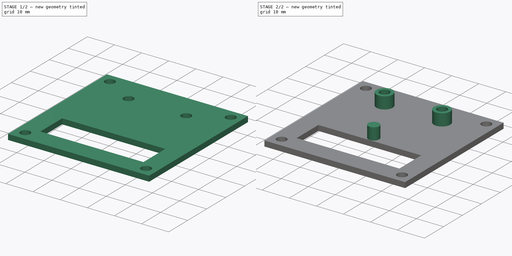
[diagram: build sequence overview — one tinted view per stage of 2, left to right]
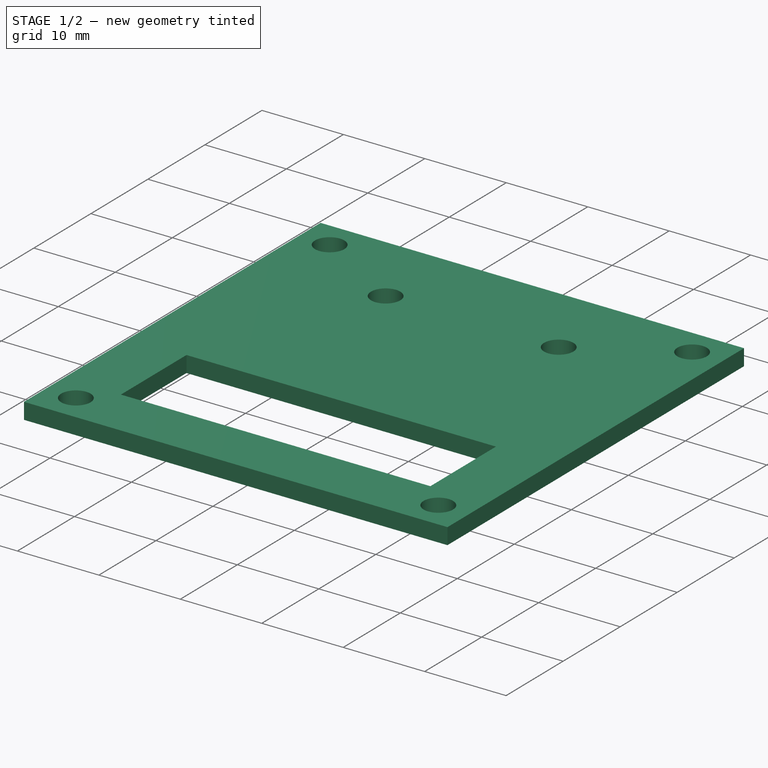
[diagram: stage 1 of 2 — iso view after this stage's code; geometry added in this stage tinted green]
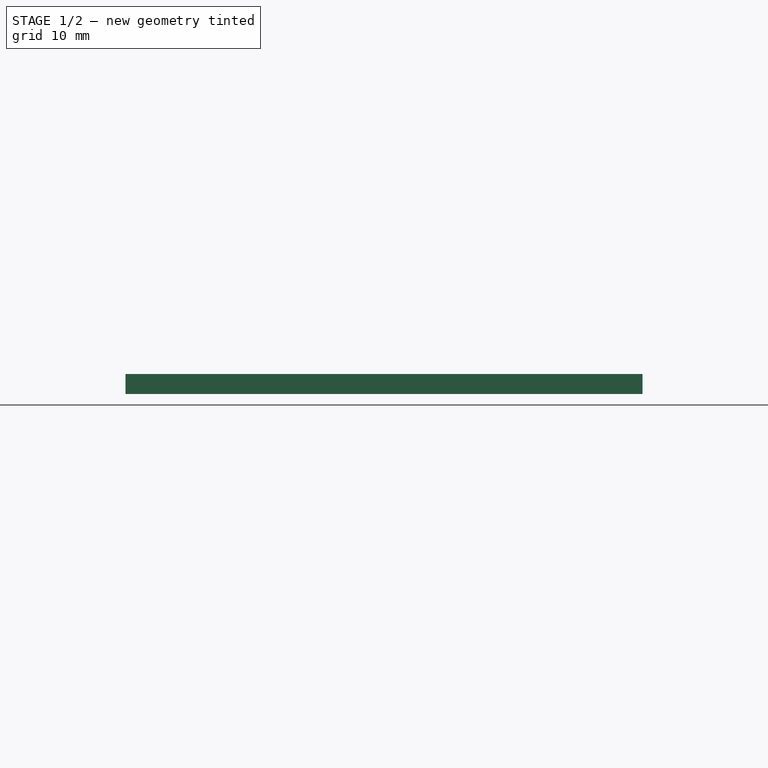
[diagram: stage 1 of 2 — front view after this stage's code; geometry added in this stage tinted green]
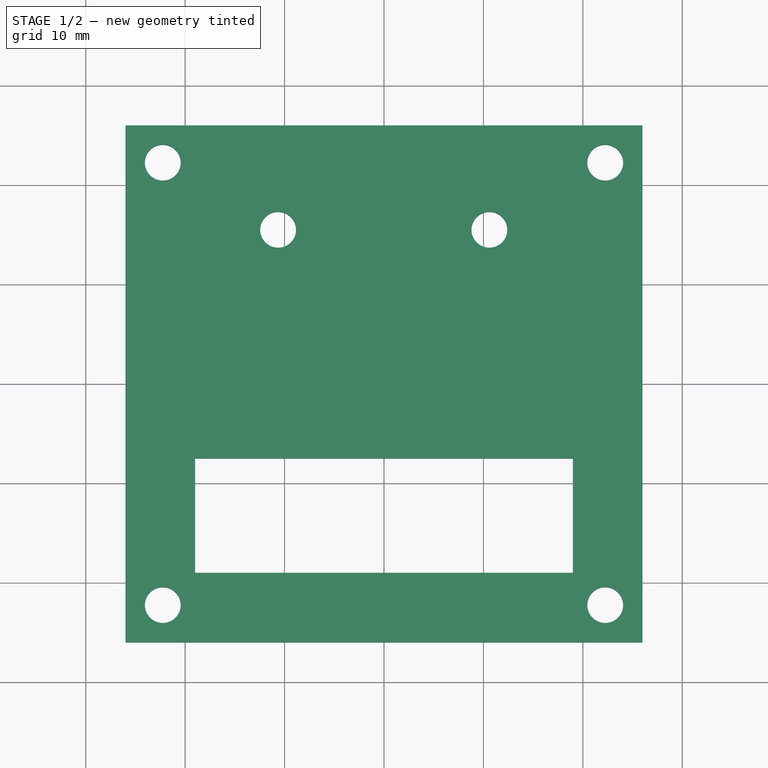
[diagram: stage 1 of 2 — top view after this stage's code; geometry added in this stage tinted green]
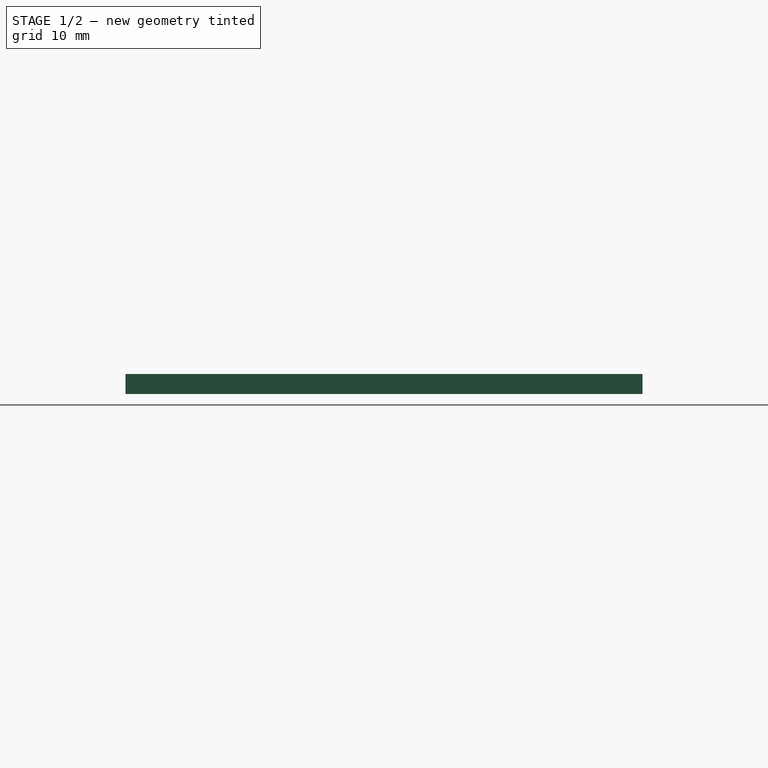
[diagram: stage 1 of 2 — right view after this stage's code; geometry added in this stage tinted green]
FCSTD DOCUMENT  (FreeCAD 0.14R3700 (Git))
Label: gps_mount
License: CC-BY 3.0
LicenseURL: http://creativecommons.org/licenses/by/3.0/
objects: Sketcher::SketchObject×2, PartDesign::Pad×2
note: 6 computed .brp shape members not serialized (recipe doc carries the construction recipe); baked Part::Feature solids carry a one-line shape summary decoded from their .brp

FEATURE [Sketcher::SketchObject] Sketch
  sketch-geometry (18):
    g0: LineSegment StartX=-26 StartY=26 StartZ=0 EndX=26 EndY=26 EndZ=0
    g1: LineSegment StartX=26 StartY=26 StartZ=0 EndX=26 EndY=-26 EndZ=0
    g2: LineSegment StartX=26 StartY=-26 StartZ=0 EndX=-26 EndY=-26 EndZ=0
    g3: LineSegment StartX=-26 StartY=-26 StartZ=0 EndX=-26 EndY=26 EndZ=0
    g4: LineSegment StartX=19 StartY=-19 StartZ=0 EndX=-19 EndY=-19 EndZ=0
    g5: LineSegment StartX=-19 StartY=-19 StartZ=0 EndX=-19 EndY=-7.5 EndZ=0
    g6: Circle CenterX=22.25 CenterY=22.25 CenterZ=0 NormalX=0 NormalY=0 NormalZ=1 Radius=1.8
    g7: Circle CenterX=22.25 CenterY=-22.25 CenterZ=0 NormalX=0 NormalY=0 NormalZ=1 Radius=1.8
    g8: Circle CenterX=-22.25 CenterY=22.25 CenterZ=0 NormalX=0 NormalY=0 NormalZ=1 Radius=1.8
    g9: Circle CenterX=-22.25 CenterY=-22.25 CenterZ=0 NormalX=0 NormalY=0 NormalZ=1 Radius=1.8
    g10: LineSegment StartX=19 StartY=-7.5 StartZ=0 EndX=-19 EndY=-7.5 EndZ=0
    g11: LineSegment StartX=19 StartY=-7.5 StartZ=0 EndX=19 EndY=-19 EndZ=0
    g12: LineSegment [constr] StartX=-7.5 StartY=7.5 StartZ=0 EndX=7.5 EndY=7.5 EndZ=0
    g13: LineSegment [constr] StartX=7.5 StartY=7.5 StartZ=0 EndX=7.5 EndY=-7.5 EndZ=0
    g14: LineSegment [constr] StartX=7.5 StartY=-7.5 StartZ=0 EndX=-7.5 EndY=-7.5 EndZ=0
    g15: LineSegment [constr] StartX=-7.5 StartY=-7.5 StartZ=0 EndX=-7.5 EndY=7.5 EndZ=0
    g16: Circle CenterX=-10.65 CenterY=15.5 CenterZ=0 NormalX=0 NormalY=0 NormalZ=1 Radius=1.8
    g17: Circle CenterX=10.6 CenterY=15.5 CenterZ=0 NormalX=0 NormalY=0 NormalZ=1 Radius=1.8
  constraints (59):
    c: Coincident(g0,g1)
    c: Coincident(g1,g2)
    c: Coincident(g2,g3)
    c: Coincident(g3,g0)
    c: Horizontal(g0)
    c: Horizontal(g2)
    c: Vertical(g1)
    c: Vertical(g3)
    c: Equal(g3,g0)
    c: Equal(g0,g1)
    c: Equal(g2,g1)
    c: DistanceX(g0,g0) = 52
    c: DistanceY(g-1,g0) = 26
    c: DistanceX(g-1,g0) = -26
    c: Coincident(g11,g4)
    c: Coincident(g4,g5)
    c: Horizontal(g4)
    c: Vertical(g5)
    c: DistanceX(g11,g1) = 7
    c: DistanceY(g11,g1) = -7
    c: DistanceX(g2,g4) = 7
    c: Radius(g9) = 1.8
    c: Radius(g8) = 1.8
    c: Radius(g6) = 1.8
    c: Radius(g7) = 1.8
    c: DistanceX(g9,g2) = -3.75
    c: DistanceY(g2,g9) = 3.75
    c: DistanceX(g0,g8) = 3.75
    c: DistanceY(g0,g8) = -3.75
    c: DistanceX(g6,g0) = 3.75
    c: DistanceY(g6,g0) = 3.75
    c: DistanceX(g1,g7) = -3.75
    c: DistanceY(g1,g7) = 3.75
    c: Horizontal(g10)
    c: PointOnObject(g5,g10)
    c: PointOnObject(g11,g10)
    c: Coincident(g5,g10)
    c: Coincident(g10,g11)
    c: Coincident(g12,g13)
    c: Coincident(g13,g14)
    c: Coincident(g14,g15)
    c: Coincident(g15,g12)
    c: Horizontal(g12)
    c: Horizontal(g14)
    c: Vertical(g13)
    c: Vertical(g15)
    c: Equal(g15,g13)
    c: Equal(g15,g12)
    c: Equal(g15,g14)
    c: DistanceX(g12,g12) = 15
    c: DistanceX(g-1,g12) = -7.5
    c: DistanceY(g-1,g12) = 7.5
    c: Radius(g16) = 1.8
    c: DistanceY(g14,g16) = 23
    c: DistanceY(g13,g10) = 0
    c: Radius(g17) = 1.8
    c: DistanceX(g17,g16) = -21.25
    c: DistanceX(g-1,g16) = -10.65
    c: DistanceY(g16,g17) = 0
FEATURE [PartDesign::Pad] Pad
  Length = 2
  Length2 = 20
  Sketch = -> Sketch
  Type = 0
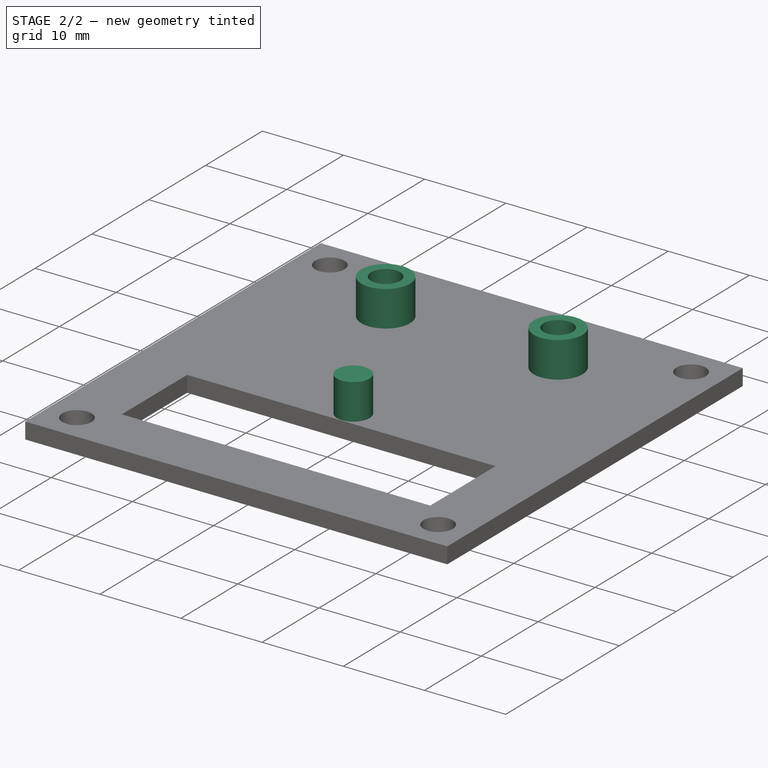
[diagram: stage 2 of 2 — iso view after this stage's code; geometry added in this stage tinted green]
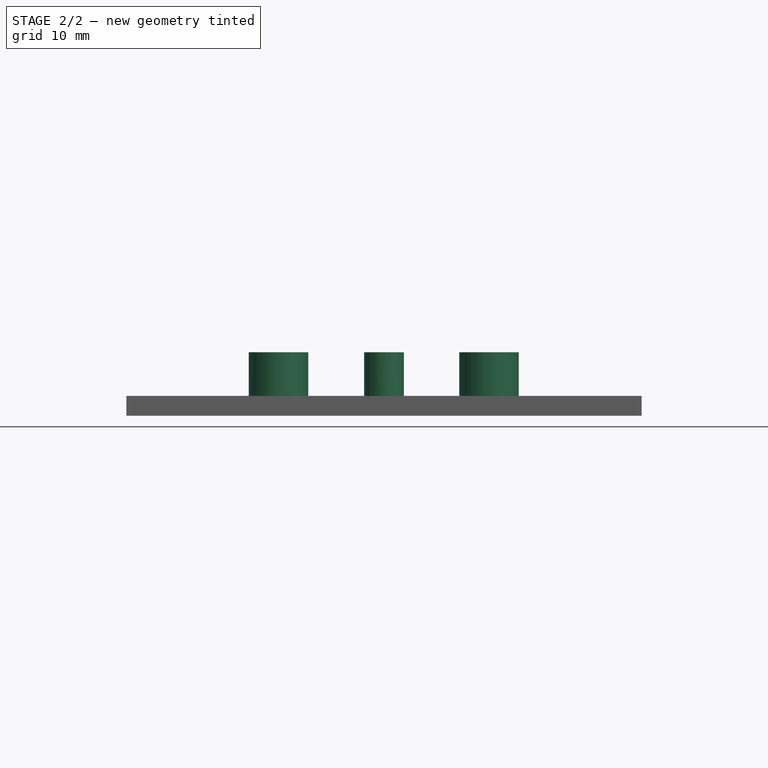
[diagram: stage 2 of 2 — front view after this stage's code; geometry added in this stage tinted green]
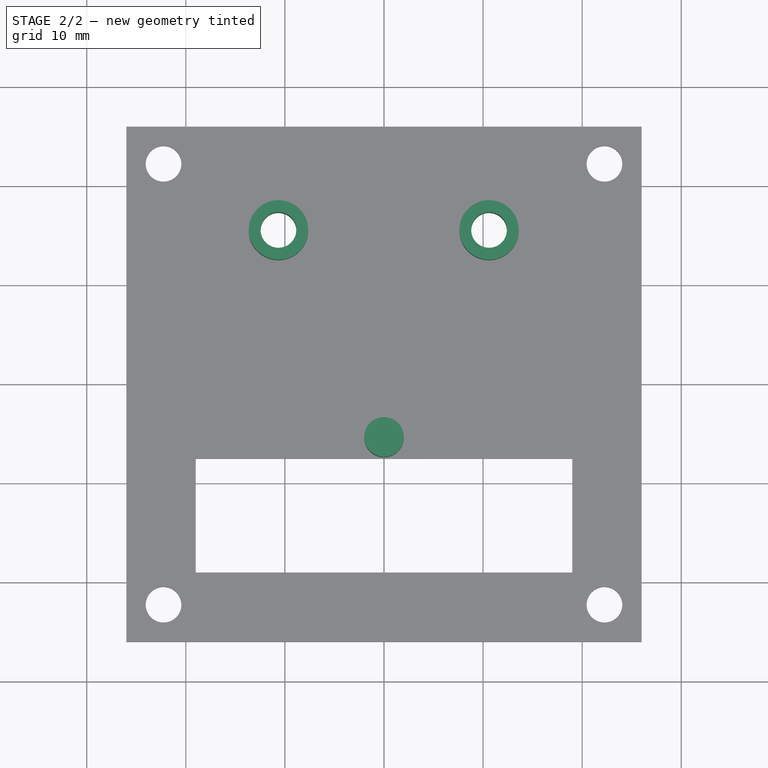
[diagram: stage 2 of 2 — top view after this stage's code; geometry added in this stage tinted green]
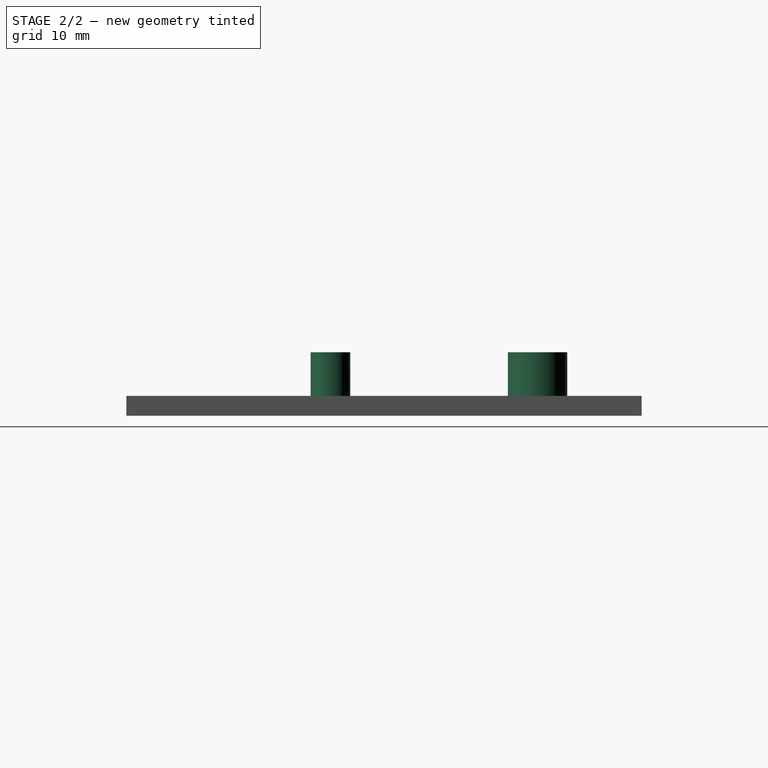
[diagram: stage 2 of 2 — right view after this stage's code; geometry added in this stage tinted green]
FEATURE [Sketcher::SketchObject] Sketch001
  ExternalGeometry = -> [Pad]
  Placement = pos=(0,0,2) rot=(0,0,1;0rad)
  Support = -> Pad [Face16]
  sketch-geometry (5):
    g0: Circle CenterX=0 CenterY=-5.4 CenterZ=0 NormalX=0 NormalY=0 NormalZ=1 Radius=2
    g1: Circle CenterX=-10.65 CenterY=15.5 CenterZ=0 NormalX=0 NormalY=0 NormalZ=1 Radius=3
    g2: Circle CenterX=10.6 CenterY=15.5 CenterZ=0 NormalX=0 NormalY=0 NormalZ=1 Radius=3
    g3: Circle CenterX=-10.65 CenterY=15.5 CenterZ=0 NormalX=0 NormalY=0 NormalZ=1 Radius=1.8
    g4: Circle CenterX=10.6 CenterY=15.5 CenterZ=0 NormalX=0 NormalY=0 NormalZ=1 Radius=1.8
  constraints (11):
    c: Radius(g0) = 2
    c: DistanceX(g-1,g0) = 0
    c: DistanceY(g-3,g0) = 2.1
    c: Coincident(g1,g-4)
    c: Radius(g1) = 3
    c: Coincident(g2,g-5)
    c: Radius(g2) = 3
    c: Coincident(g3,g1)
    c: Radius(g3) = 1.8
    c: Radius(g4) = 1.8
    c: Coincident(g4,g2)
FEATURE [PartDesign::Pad] Pad001
  Length = 4.4
  Length2 = 20
  Sketch = -> Sketch001
  Type = 0
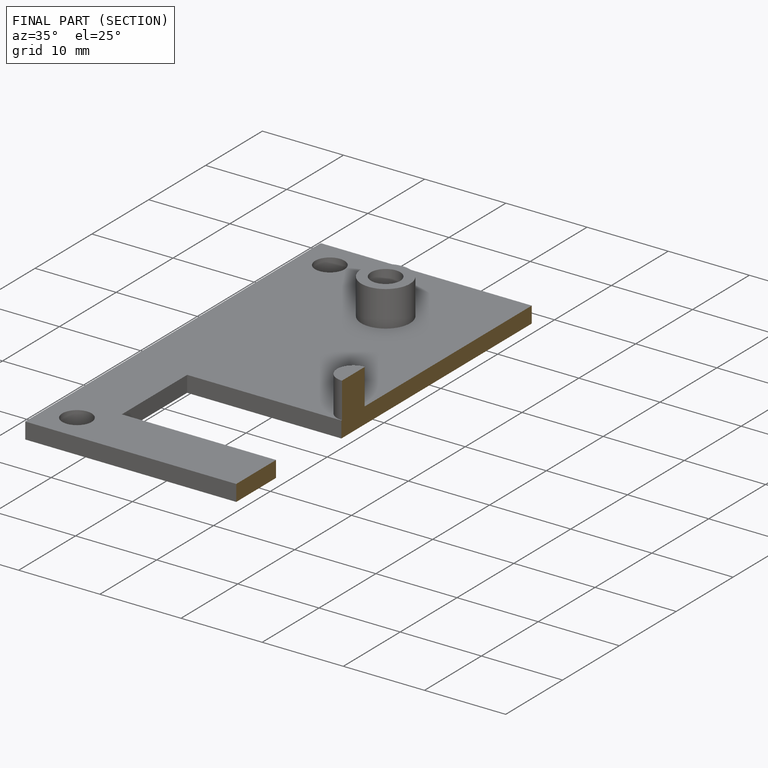
[diagram: finished part — half-section view (interior)]
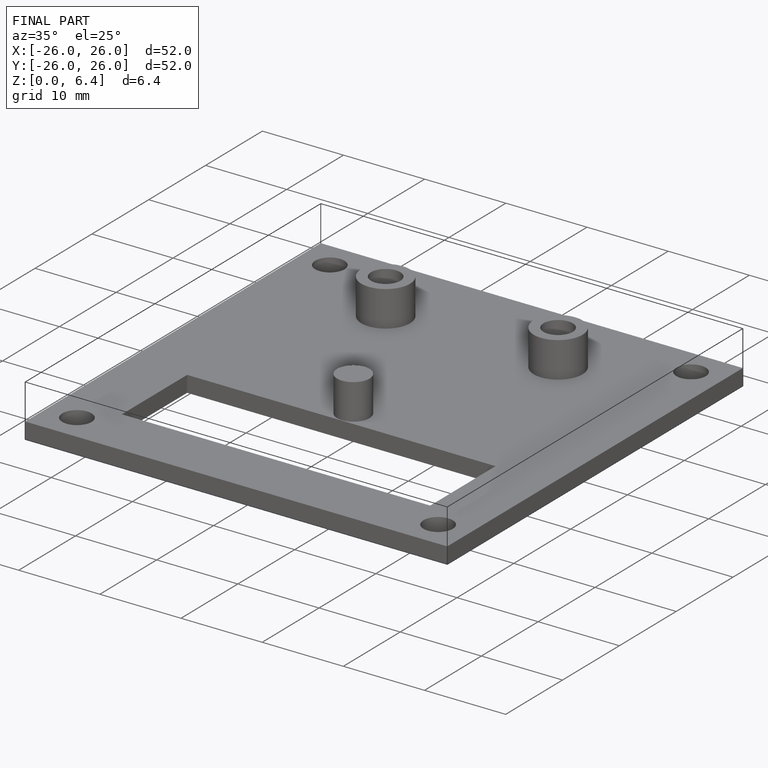
[diagram: finished part — iso view with bounding-box wireframe]
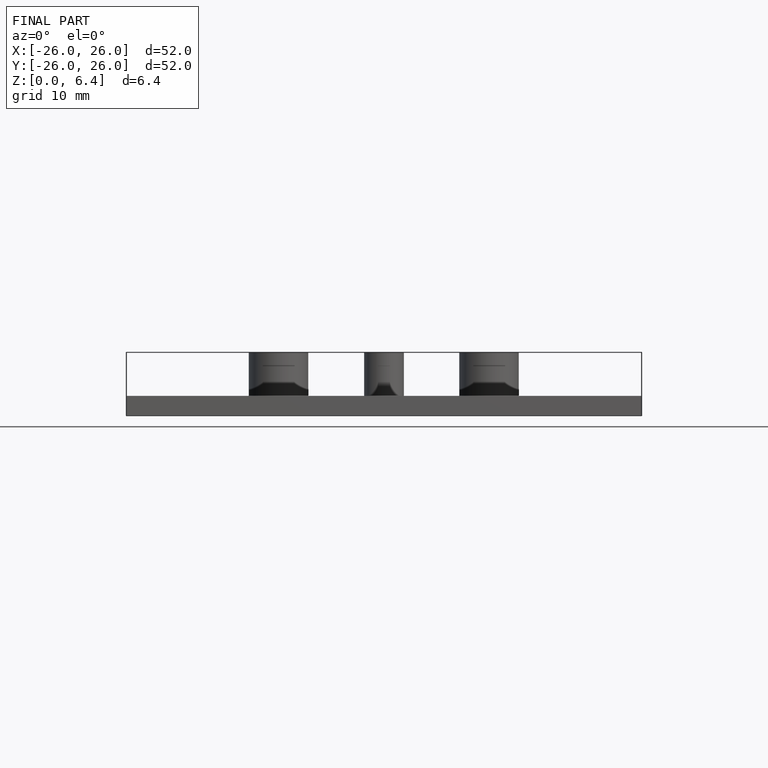
[diagram: finished part — front view with bounding-box wireframe]
